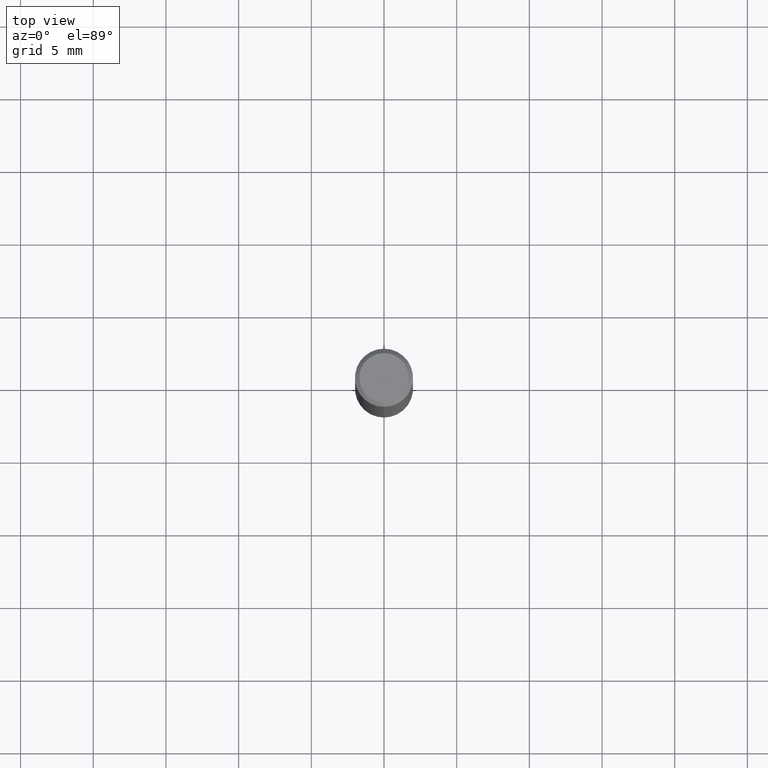
[diagram: clean part render]
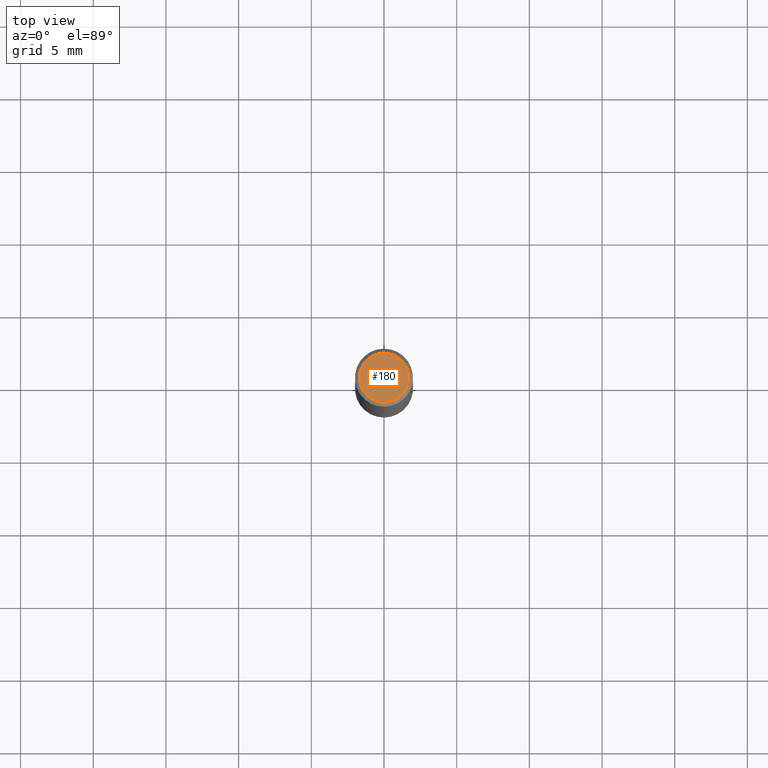
[diagram: same view with one face highlighted and labeled with its STEP entity id]
A machine part, top view. The second image highlights one B-rep face of the part: STEP entity #180.
In plain terms, the highlighted planar face has unit normal (-0, 0, 1).
Its self-contained STEP definition (entity closure, byte-faithful):
#130=EDGE_CURVE('',#136,#152,#288,.T.);
#136=VERTEX_POINT('',#294);
#140=EDGE_CURVE('',#152,#136,#298,.T.);
#152=VERTEX_POINT('',#310);
#180=ADVANCED_FACE('',(#342),#343,.T.);
#288=CIRCLE('',#461,1.7);
#294=CARTESIAN_POINT('',(2.08183080149804E-016,-1.7,0.0));
#298=CIRCLE('',#477,1.7);
#310=CARTESIAN_POINT('',(0.0,1.7,0.0));
#342=FACE_OUTER_BOUND('',#528,.T.);
#343=PLANE('',#529);
#461=AXIS2_PLACEMENT_3D('',#650,#651,#652);
#477=AXIS2_PLACEMENT_3D('',#658,#659,#660);
#528=EDGE_LOOP('',(#709,#710));
#529=AXIS2_PLACEMENT_3D('',#711,#712,#713);
#650=CARTESIAN_POINT('',(0.0,0.0,0.0));
#651=DIRECTION('',(0.0,0.0,-1.0));
#652=DIRECTION('',(0.0,1.0,0.0));
#658=CARTESIAN_POINT('',(0.0,0.0,0.0));
#659=DIRECTION('',(0.0,0.0,-1.0));
#660=DIRECTION('',(0.0,1.0,0.0));
#709=ORIENTED_EDGE('',*,*,#140,.F.);
#710=ORIENTED_EDGE('',*,*,#130,.F.);
#711=CARTESIAN_POINT('',(0.0,0.85,0.0));
#712=DIRECTION('',(-0.0,0.0,1.0));
#713=DIRECTION('',(0.0,-1.0,0.0));